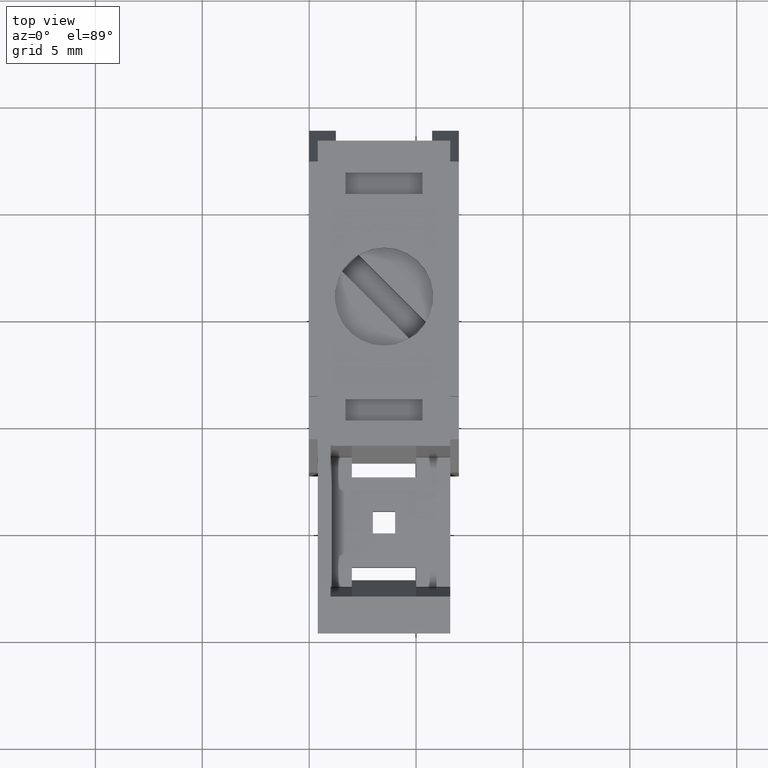
[diagram: clean part render]
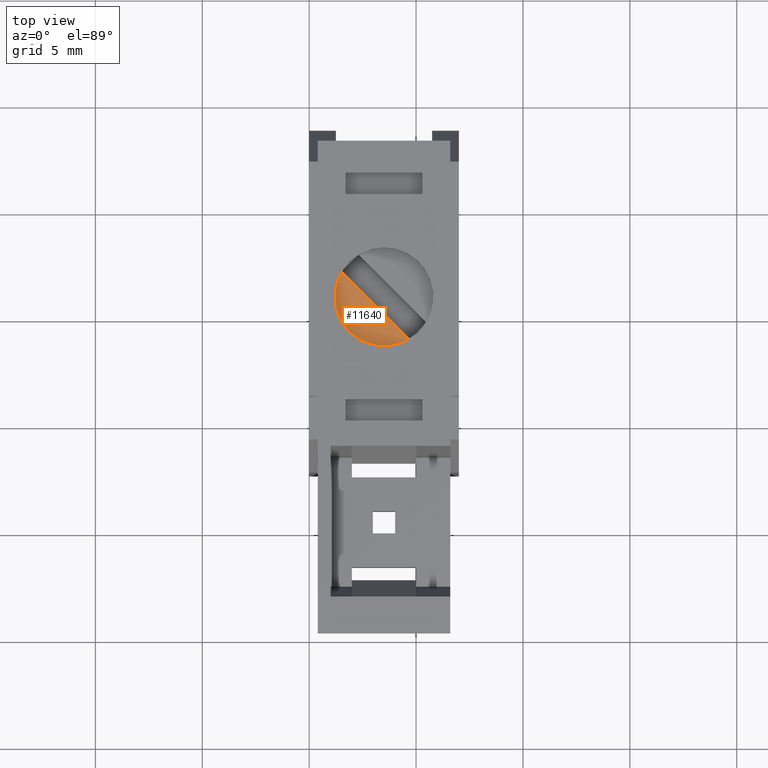
[diagram: same view with one face highlighted and labeled with its STEP entity id]
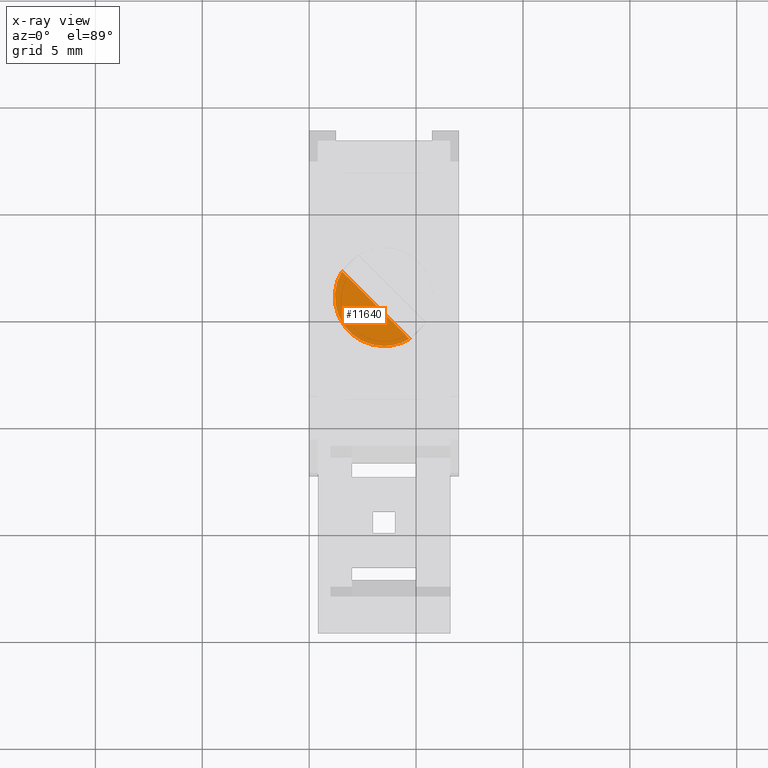
[diagram: x-ray of the same camera — body ghosted, the highlighted face saturated]
A machine part, top view. The second image highlights one B-rep face of the part: STEP entity #11640.
The next image is the same camera in x-ray: the body ghosted, the highlighted face saturated — about 0% of this face is hidden behind the body in this view.
In plain terms, the highlighted planar face has unit normal (0, 0, 1).
Its self-contained STEP definition (entity closure, byte-faithful):
#10240=CARTESIAN_POINT('',(-3.5,28.3,10.3));
#10250=VERTEX_POINT('',#10240);
#10370=CARTESIAN_POINT('',(-3.5,28.3,8.));
#10380=DIRECTION('',(0.,-1.,0.));
#10390=DIRECTION('',(6.12323399573677E-17,0.,1.));
#10400=AXIS2_PLACEMENT_3D('',#10370,#10380,#10390);
#10410=CIRCLE('',#10400,2.3);
#10670=CARTESIAN_POINT('',(-5.46806989938797,28.3,6.80974755991722));
#10680=VERTEX_POINT('',#10670);
#10710=EDGE_CURVE('',#10250,#10680,#10410,.T.);
#11330=CARTESIAN_POINT('',(-2.30974755991722,28.3,9.96806989938798));
#11340=VERTEX_POINT('',#11330);
#11370=CARTESIAN_POINT('',(-12.2778174593052,28.3,0.));
#11380=DIRECTION('',(-0.707106781186547,0.,-0.707106781186548));
#11390=VECTOR('',#11380,1.);
#11400=LINE('',#11370,#11390);
#11410=EDGE_CURVE('',#11340,#10680,#11400,.T.);
#11530=CARTESIAN_POINT('',(-6.19710989923832,28.3,7.83704136636004));
#11540=DIRECTION('',(-0.,1.,0.));
#11550=DIRECTION('',(6.12323399573677E-17,0.,1.));
#11560=AXIS2_PLACEMENT_3D('',#11530,#11540,#11550);
#11570=PLANE('',#11560);
#11580=ORIENTED_EDGE('',*,*,#11410,.T.);
#11590=EDGE_CURVE('',#11340,#10250,#10410,.T.);
#11600=ORIENTED_EDGE('',*,*,#11590,.F.);
#11610=ORIENTED_EDGE('',*,*,#10710,.F.);
#11620=EDGE_LOOP('',(#11610,#11600,#11580));
#11630=FACE_OUTER_BOUND('',#11620,.T.);
#11640=ADVANCED_FACE('',(#11630),#11570,.T.);